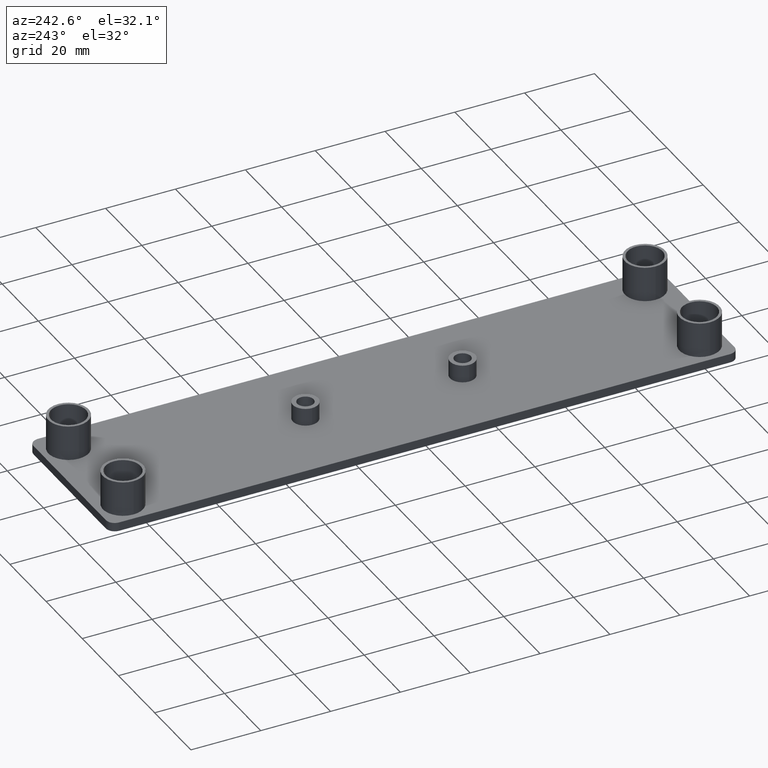
[diagram: clean part render]
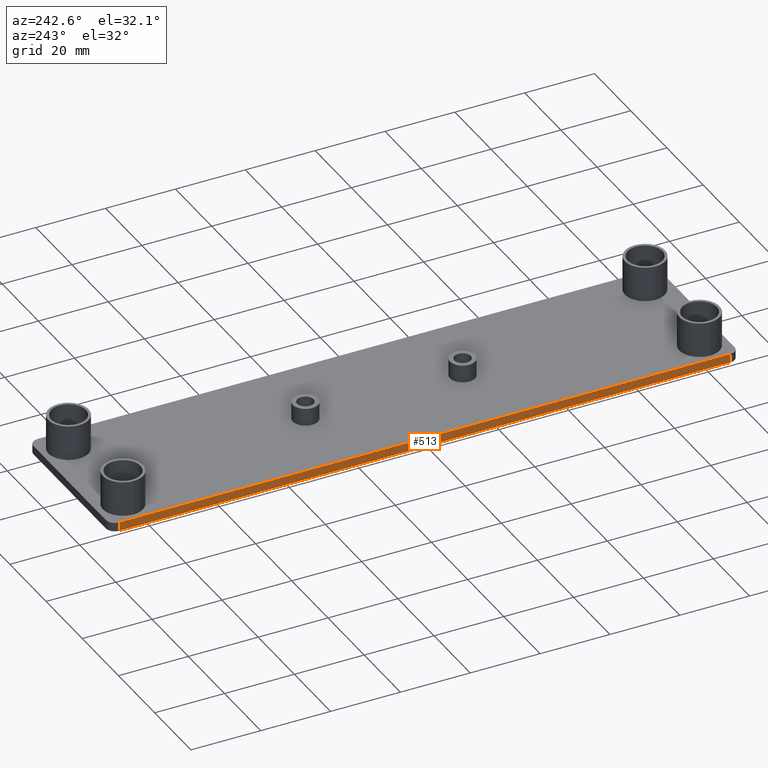
[diagram: same view with one face highlighted and labeled with its STEP entity id]
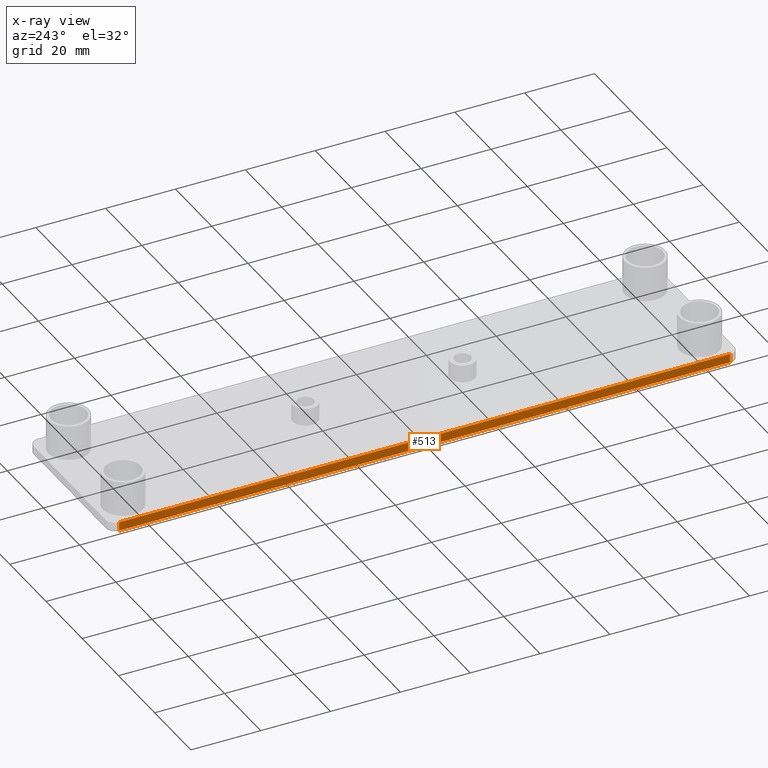
[diagram: x-ray of the same camera — body ghosted, the highlighted face saturated]
A machine part, auxiliary view. The second image highlights one B-rep face of the part: STEP entity #513.
The next image is the same camera in x-ray: the body ghosted, the highlighted face saturated — about 0% of this face is hidden behind the body in this view.
In plain terms, the highlighted planar face has unit normal (1, 0, 0).
Its self-contained STEP definition (entity closure, byte-faithful):
#40=LINE('',#866,#68);
#42=LINE('',#874,#70);
#45=LINE('',#882,#73);
#51=LINE('',#895,#79);
#68=VECTOR('',#726,175.00000099928);
#70=VECTOR('',#734,2.5);
#73=VECTOR('',#741,175.00000099928);
#79=VECTOR('',#755,2.5);
#128=FACE_OUTER_BOUND('',#174,.T.);
#174=EDGE_LOOP('',(#414,#415,#416,#417));
#239=VERTEX_POINT('',#863);
#240=VERTEX_POINT('',#865);
#243=VERTEX_POINT('',#872);
#246=VERTEX_POINT('',#880);
#291=EDGE_CURVE('',#240,#239,#40,.T.);
#295=EDGE_CURVE('',#243,#239,#42,.T.);
#299=EDGE_CURVE('',#246,#243,#45,.T.);
#307=EDGE_CURVE('',#246,#240,#51,.T.);
#414=ORIENTED_EDGE('',*,*,#307,.T.);
#415=ORIENTED_EDGE('',*,*,#291,.T.);
#416=ORIENTED_EDGE('',*,*,#295,.F.);
#417=ORIENTED_EDGE('',*,*,#299,.F.);
#444=PLANE('',#602);
#513=ADVANCED_FACE('',(#128),#444,.F.);
#602=AXIS2_PLACEMENT_3D('',#899,#760,#761);
#726=DIRECTION('',(0.,-1.,0.));
#734=DIRECTION('',(0.,0.,-1.));
#741=DIRECTION('',(0.,-1.,0.));
#755=DIRECTION('',(0.,0.,-1.));
#760=DIRECTION('center_axis',(1.,0.,0.));
#761=DIRECTION('ref_axis',(0.,0.,-1.));
#863=CARTESIAN_POINT('',(-22.4999739999062,-65.0000009997302,-2.5));
#865=CARTESIAN_POINT('',(-22.4999739999062,109.99999999955,-2.5));
#866=CARTESIAN_POINT('',(-22.4999739999062,109.99999999955,-2.5));
#872=CARTESIAN_POINT('',(-22.4999739999062,-65.0000009997302,0.));
#874=CARTESIAN_POINT('',(-22.4999739999062,-65.0000009997302,0.));
#880=CARTESIAN_POINT('',(-22.4999739999062,109.99999999955,0.));
#882=CARTESIAN_POINT('',(-22.4999739999062,109.99999999955,0.));
#895=CARTESIAN_POINT('',(-22.4999739999062,109.99999999955,0.));
#899=CARTESIAN_POINT('Origin',(-22.4999739999062,112.49999999955,0.));